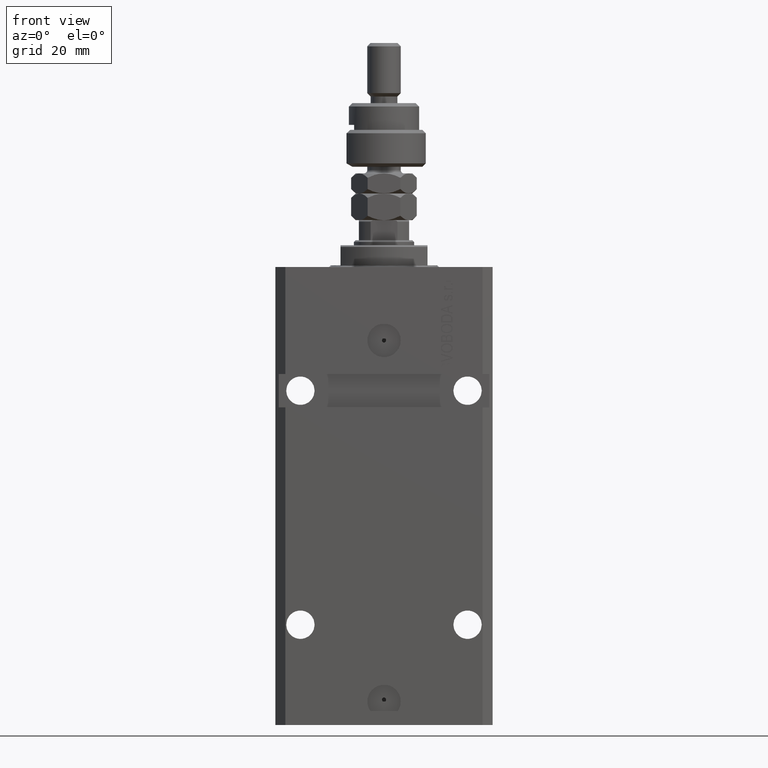
[diagram: clean part render]
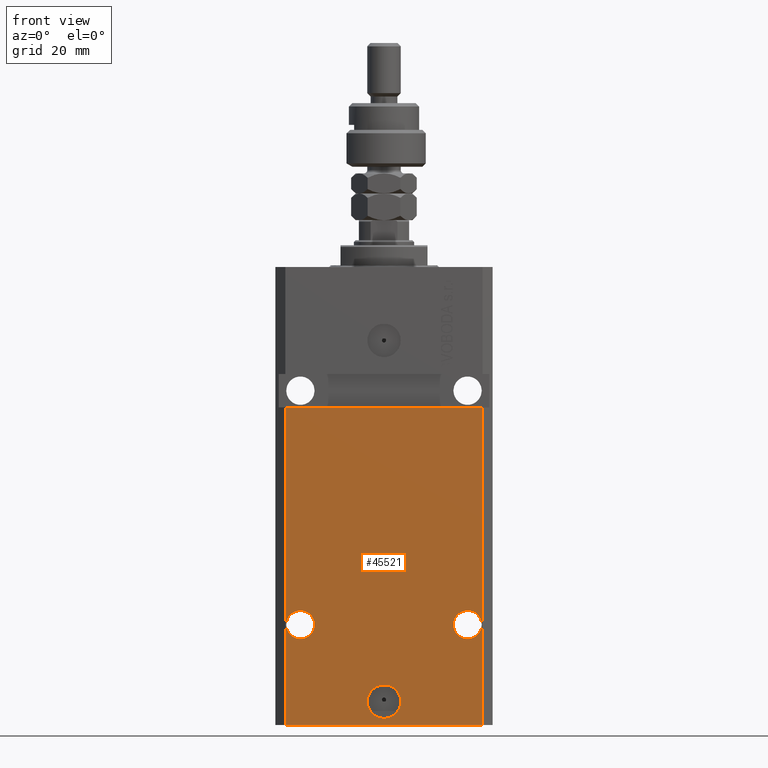
[diagram: same view with one face highlighted and labeled with its STEP entity id]
A machine part, front view. The second image highlights one B-rep face of the part: STEP entity #45521.
In plain terms, the highlighted planar face has unit normal (0, -1, 0).
Its self-contained STEP definition (entity closure, byte-faithful):
#103 = LINE ( 'NONE', #15000, #28659 ) ;
#120 = ORIENTED_EDGE ( 'NONE', *, *, #31118, .F. ) ;
#715 = CARTESIAN_POINT ( 'NONE',  ( -29.49999999999650413, -22.49999999999949907, -137.0000000000000000 ) ) ;
#1417 = CARTESIAN_POINT ( 'NONE',  ( 25.00000000000001066, -22.49999999999949196, -107.0000000000000000 ) ) ;
#1741 = CARTESIAN_POINT ( 'NONE',  ( -29.24999999998905409, -22.49999999999949907, -107.0000000000000000 ) ) ;
#2041 = CIRCLE ( 'NONE', #6747, 5.000000000000006217 ) ;
#2184 = DIRECTION ( 'NONE',  ( 1.176083712526788232E-16, -1.000000000000000000, 0.000000000000000000 ) ) ;
#2286 = ORIENTED_EDGE ( 'NONE', *, *, #36957, .F. ) ;
#2456 = VECTOR ( 'NONE', #43491, 1000.000000000000000 ) ;
#5257 = EDGE_CURVE ( 'NONE', #41703, #45952, #34363, .T. ) ;
#6111 = LINE ( 'NONE', #715, #21458 ) ;
#6358 = DIRECTION ( 'NONE',  ( 1.000000000000000000, 0.000000000000000000, 0.000000000000000000 ) ) ;
#6747 = AXIS2_PLACEMENT_3D ( 'NONE', #11332, #47985, #25998 ) ;
#7341 = EDGE_CURVE ( 'NONE', #18425, #39151, #21503, .T. ) ;
#7512 = EDGE_LOOP ( 'NONE', ( #45422, #120 ) ) ;
#7887 = EDGE_CURVE ( 'NONE', #10526, #18425, #28860, .T. ) ;
#7997 = CARTESIAN_POINT ( 'NONE',  ( 29.49999999999650058, -22.49999999999949196, -41.99999999999998579 ) ) ;
#10526 = VERTEX_POINT ( 'NONE', #26548 ) ;
#11332 = CARTESIAN_POINT ( 'NONE',  ( 2.646188353185214061E-15, -22.49999999999949551, -130.0000000000000000 ) ) ;
#11852 = CARTESIAN_POINT ( 'NONE',  ( 5.000000000000008882, -22.49999999999949551, -130.0000000000000000 ) ) ;
#12428 = CARTESIAN_POINT ( 'NONE',  ( 25.00000000000001066, -22.49999999999949196, -107.0000000000000000 ) ) ;
#13438 = VERTEX_POINT ( 'NONE', #11852 ) ;
#14045 = DIRECTION ( 'NONE',  ( -1.000000000000000000, 0.000000000000000000, 0.000000000000000000 ) ) ;
#14140 = PLANE ( 'NONE',  #42185 ) ;
#14205 = CIRCLE ( 'NONE', #41521, 5.000000000000006217 ) ;
#14272 = ORIENTED_EDGE ( 'NONE', *, *, #19317, .F. ) ;
#14352 = CIRCLE ( 'NONE', #21395, 4.249999999989050536 ) ;
#14412 = VERTEX_POINT ( 'NONE', #19023 ) ;
#14660 = VERTEX_POINT ( 'NONE', #26464 ) ;
#15000 = CARTESIAN_POINT ( 'NONE',  ( -32.49999999999650413, -22.49999999999949907, -41.99999999999999289 ) ) ;
#16378 = CARTESIAN_POINT ( 'NONE',  ( 29.49999999999650413, -22.49999999999949196, -137.0000000000000000 ) ) ;
#17444 = ORIENTED_EDGE ( 'NONE', *, *, #7887, .T. ) ;
#17695 = DIRECTION ( 'NONE',  ( -1.000000000000000000, 0.000000000000000000, 0.000000000000000000 ) ) ;
#17826 = AXIS2_PLACEMENT_3D ( 'NONE', #12428, #46146, #46631 ) ;
#18175 = CARTESIAN_POINT ( 'NONE',  ( 20.75000000001096012, -22.49999999999949196, -107.0000000000000000 ) ) ;
#18425 = VERTEX_POINT ( 'NONE', #16378 ) ;
#18529 = CARTESIAN_POINT ( 'NONE',  ( -29.49999999999650413, -22.49999999999949907, -41.99999999999999289 ) ) ;
#19023 = CARTESIAN_POINT ( 'NONE',  ( -5.000000000000003553, -22.49999999999949551, -130.0000000000000000 ) ) ;
#19317 = EDGE_CURVE ( 'NONE', #10526, #21389, #6111, .T. ) ;
#20309 = EDGE_CURVE ( 'NONE', #13438, #14412, #14205, .T. ) ;
#21389 = VERTEX_POINT ( 'NONE', #18529 ) ;
#21395 = AXIS2_PLACEMENT_3D ( 'NONE', #43137, #36286, #14045 ) ;
#21458 = VECTOR ( 'NONE', #44457, 1000.000000000000000 ) ;
#21503 = LINE ( 'NONE', #35674, #2456 ) ;
#21723 = FACE_OUTER_BOUND ( 'NONE', #23105, .T. ) ;
#23105 = EDGE_LOOP ( 'NONE', ( #2286, #14272, #17444, #36423 ) ) ;
#24138 = DIRECTION ( 'NONE',  ( 1.176083712526788232E-16, -1.000000000000000000, 0.000000000000000000 ) ) ;
#24672 = AXIS2_PLACEMENT_3D ( 'NONE', #43594, #39688, #17695 ) ;
#25137 = DIRECTION ( 'NONE',  ( 1.000000000000000000, 1.176083712526788232E-16, 0.000000000000000000 ) ) ;
#25662 = EDGE_CURVE ( 'NONE', #32014, #14660, #14352, .T. ) ;
#25998 = DIRECTION ( 'NONE',  ( 1.000000000000000000, 0.000000000000000000, 0.000000000000000000 ) ) ;
#26464 = CARTESIAN_POINT ( 'NONE',  ( -20.75000000001095302, -22.49999999999949907, -107.0000000000000000 ) ) ;
#26548 = CARTESIAN_POINT ( 'NONE',  ( -29.49999999999650413, -22.49999999999949907, -137.0000000000000000 ) ) ;
#28583 = DIRECTION ( 'NONE',  ( 1.176083712526788232E-16, -1.000000000000000000, 0.000000000000000000 ) ) ;
#28659 = VECTOR ( 'NONE', #29895, 1000.000000000000000 ) ;
#28860 = LINE ( 'NONE', #40101, #36000 ) ;
#29895 = DIRECTION ( 'NONE',  ( 1.000000000000000000, 1.067522139062765303E-16, 1.067522139062765303E-16 ) ) ;
#29916 = ORIENTED_EDGE ( 'NONE', *, *, #25662, .F. ) ;
#30377 = ORIENTED_EDGE ( 'NONE', *, *, #39057, .F. ) ;
#30734 = DIRECTION ( 'NONE',  ( 1.000000000000000000, 0.000000000000000000, 0.000000000000000000 ) ) ;
#31001 = EDGE_CURVE ( 'NONE', #14660, #32014, #38721, .T. ) ;
#31118 = EDGE_CURVE ( 'NONE', #14412, #13438, #2041, .T. ) ;
#31680 = EDGE_LOOP ( 'NONE', ( #43589, #29916 ) ) ;
#32014 = VERTEX_POINT ( 'NONE', #1741 ) ;
#32711 = FACE_BOUND ( 'NONE', #31680, .T. ) ;
#33232 = CARTESIAN_POINT ( 'NONE',  ( 2.646188353185214061E-15, -22.49999999999949551, -130.0000000000000000 ) ) ;
#33828 = ORIENTED_EDGE ( 'NONE', *, *, #5257, .F. ) ;
#34363 = CIRCLE ( 'NONE', #45294, 4.249999999989050536 ) ;
#35674 = CARTESIAN_POINT ( 'NONE',  ( 29.49999999999650413, -22.49999999999949196, -137.0000000000000000 ) ) ;
#36000 = VECTOR ( 'NONE', #39138, 1000.000000000000000 ) ;
#36286 = DIRECTION ( 'NONE',  ( 1.176083712526788232E-16, -1.000000000000000000, 0.000000000000000000 ) ) ;
#36423 = ORIENTED_EDGE ( 'NONE', *, *, #7341, .T. ) ;
#36512 = EDGE_LOOP ( 'NONE', ( #30377, #33828 ) ) ;
#36957 = EDGE_CURVE ( 'NONE', #21389, #39151, #103, .T. ) ;
#38721 = CIRCLE ( 'NONE', #24672, 4.249999999989050536 ) ;
#38876 = CIRCLE ( 'NONE', #17826, 4.249999999989050536 ) ;
#39057 = EDGE_CURVE ( 'NONE', #45952, #41703, #38876, .T. ) ;
#39138 = DIRECTION ( 'NONE',  ( 1.000000000000000000, 1.176083712526788232E-16, 0.000000000000000000 ) ) ;
#39151 = VERTEX_POINT ( 'NONE', #7997 ) ;
#39688 = DIRECTION ( 'NONE',  ( 1.176083712526788232E-16, -1.000000000000000000, 0.000000000000000000 ) ) ;
#39793 = CARTESIAN_POINT ( 'NONE',  ( -29.49999999999650413, -22.49999999999949907, -137.0000000000000000 ) ) ;
#40101 = CARTESIAN_POINT ( 'NONE',  ( -29.49999999999650413, -22.49999999999949907, -137.0000000000000000 ) ) ;
#41521 = AXIS2_PLACEMENT_3D ( 'NONE', #33232, #28583, #6358 ) ;
#41703 = VERTEX_POINT ( 'NONE', #18175 ) ;
#42185 = AXIS2_PLACEMENT_3D ( 'NONE', #39793, #2184, #25137 ) ;
#43137 = CARTESIAN_POINT ( 'NONE',  ( -25.00000000000000355, -22.49999999999949907, -107.0000000000000000 ) ) ;
#43491 = DIRECTION ( 'NONE',  ( 0.000000000000000000, 0.000000000000000000, 1.000000000000000000 ) ) ;
#43589 = ORIENTED_EDGE ( 'NONE', *, *, #31001, .F. ) ;
#43594 = CARTESIAN_POINT ( 'NONE',  ( -25.00000000000000355, -22.49999999999949907, -107.0000000000000000 ) ) ;
#43948 = FACE_BOUND ( 'NONE', #7512, .T. ) ;
#44457 = DIRECTION ( 'NONE',  ( 0.000000000000000000, 0.000000000000000000, 1.000000000000000000 ) ) ;
#45294 = AXIS2_PLACEMENT_3D ( 'NONE', #1417, #24138, #30734 ) ;
#45422 = ORIENTED_EDGE ( 'NONE', *, *, #20309, .F. ) ;
#45521 = ADVANCED_FACE ( 'NONE', ( #43948, #47369, #32711, #21723 ), #14140, .T. ) ;
#45952 = VERTEX_POINT ( 'NONE', #47280 ) ;
#46146 = DIRECTION ( 'NONE',  ( 1.176083712526788232E-16, -1.000000000000000000, 0.000000000000000000 ) ) ;
#46631 = DIRECTION ( 'NONE',  ( 1.000000000000000000, 0.000000000000000000, 0.000000000000000000 ) ) ;
#47280 = CARTESIAN_POINT ( 'NONE',  ( 29.24999999998906119, -22.49999999999949196, -107.0000000000000000 ) ) ;
#47369 = FACE_BOUND ( 'NONE', #36512, .T. ) ;
#47985 = DIRECTION ( 'NONE',  ( 1.176083712526788232E-16, -1.000000000000000000, 0.000000000000000000 ) ) ;